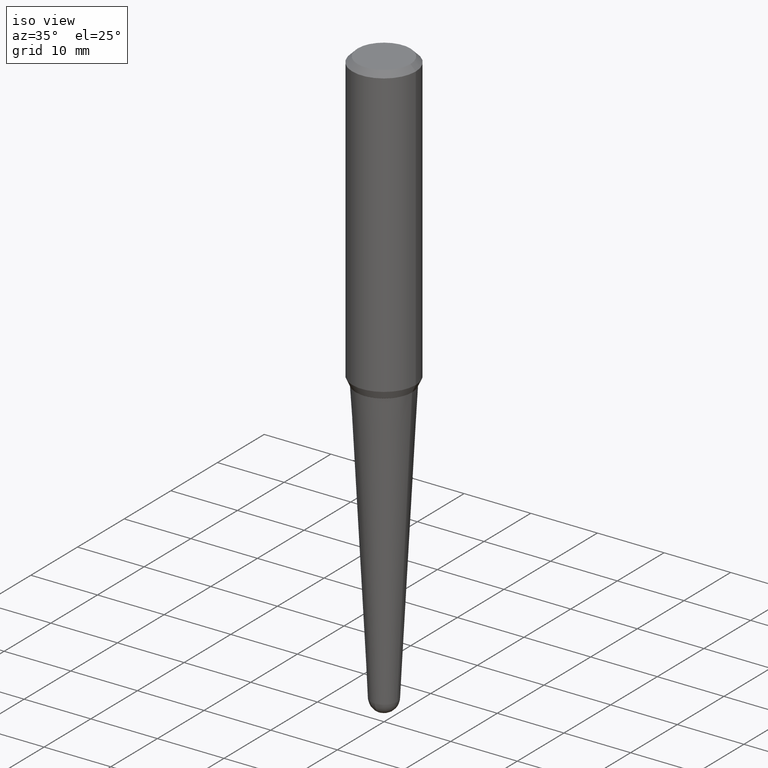
[diagram: clean part render]
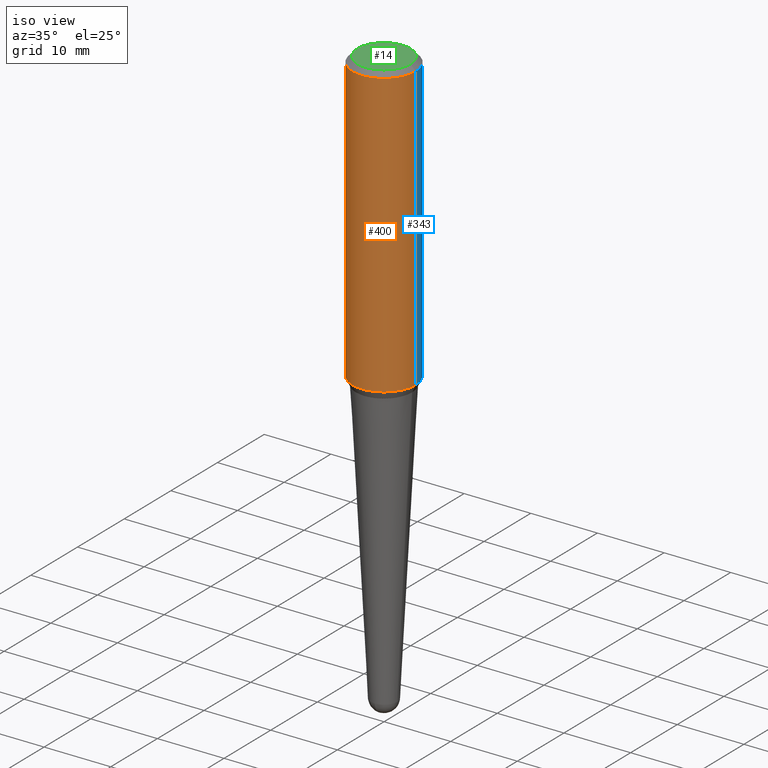
[diagram: same view with three faces highlighted in distinct colors, each labeled with its STEP entity id]
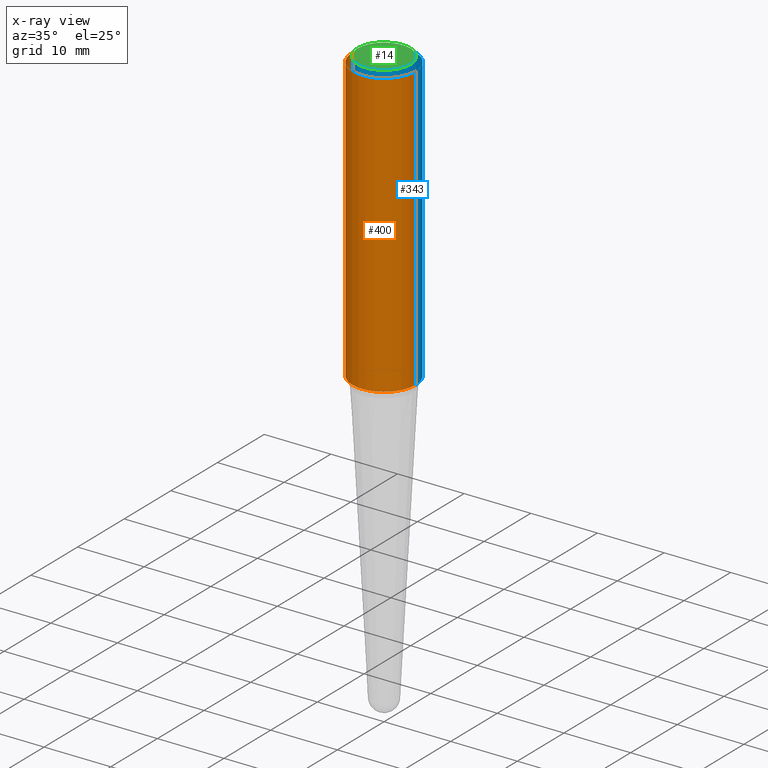
[diagram: x-ray of the same camera — body ghosted, the three highlighted faces saturated]
A machine part, iso view with three faces highlighted in distinct colors.
The next image is the same camera in x-ray (body ghosted, the three faces saturated) — at least one of them is partly hidden behind the body in this view.
Their STEP definitions:

[orange] entity #400 — the highlighted cylindrical surface (partial cylindrical patch) has radius 4.7625 mm, axis along (-0, 0, 1).
#32 = VERTEX_POINT ( 'NONE', #421 ) ;
#53 = CARTESIAN_POINT ( 'NONE',  ( 0.1874999999999999722, -1.418414293905023123E-15, -0.03125000000000003469 ) ) ;
#59 = VERTEX_POINT ( 'NONE', #119 ) ;
#62 = DIRECTION ( 'NONE',  ( -2.445468806185136877E-29, 3.491481338843145188E-15, 1.000000000000000000 ) ) ;
#114 = DIRECTION ( 'NONE',  ( -2.445468806185136597E-29, 3.491481338843145583E-15, 1.000000000000000000 ) ) ;
#119 = CARTESIAN_POINT ( 'NONE',  ( 0.1875000000000002220, -7.262868483743506194E-15, -1.705168209104609645 ) ) ;
#124 = EDGE_LOOP ( 'NONE', ( #162, #325, #396, #194 ) ) ;
#130 = LINE ( 'NONE', #395, #175 ) ;
#144 = AXIS2_PLACEMENT_3D ( 'NONE', #177, #346, #314 ) ;
#150 = VECTOR ( 'NONE', #217, 39.37007874015748143 ) ;
#162 = ORIENTED_EDGE ( 'NONE', *, *, #294, .F. ) ;
#175 = VECTOR ( 'NONE', #62, 39.37007874015748143 ) ;
#177 = CARTESIAN_POINT ( 'NONE',  ( 4.169935664663897396E-29, -5.953562981677331975E-15, -1.705168209104609645 ) ) ;
#178 = LINE ( 'NONE', #331, #150 ) ;
#183 = EDGE_CURVE ( 'NONE', #32, #186, #329, .T. ) ;
#186 = VERTEX_POINT ( 'NONE', #53 ) ;
#190 = EDGE_CURVE ( 'NONE', #238, #59, #366, .T. ) ;
#194 = ORIENTED_EDGE ( 'NONE', *, *, #183, .F. ) ;
#217 = DIRECTION ( 'NONE',  ( -2.445468806185136877E-29, 3.491481338843145188E-15, 1.000000000000000000 ) ) ;
#238 = VERTEX_POINT ( 'NONE', #425 ) ;
#260 = DIRECTION ( 'NONE',  ( 1.000000000000000000, -6.982962677686266711E-15, 0.000000000000000000 ) ) ;
#272 = CYLINDRICAL_SURFACE ( 'NONE', #304, 0.1875000000000001110 ) ;
#289 = AXIS2_PLACEMENT_3D ( 'NONE', #301, #114, #260 ) ;
#294 = EDGE_CURVE ( 'NONE', #238, #32, #130, .T. ) ;
#301 = CARTESIAN_POINT ( 'NONE',  ( 7.642090019328561499E-31, -1.091087918388484350E-16, -0.03125000000000003469 ) ) ;
#304 = AXIS2_PLACEMENT_3D ( 'NONE', #323, #420, #407 ) ;
#314 = DIRECTION ( 'NONE',  ( 1.000000000000000000, -6.982962677686265133E-15, 0.000000000000000000 ) ) ;
#323 = CARTESIAN_POINT ( 'NONE',  ( -1.450455682483482035E-44, 2.070866303999251778E-30, 5.931196827434296760E-16 ) ) ;
#325 = ORIENTED_EDGE ( 'NONE', *, *, #190, .T. ) ;
#329 = CIRCLE ( 'NONE', #289, 0.1874999999999999722 ) ;
#331 = CARTESIAN_POINT ( 'NONE',  ( 0.1875000000000001110, -1.309305502066173628E-15, 5.931196827434387479E-16 ) ) ;
#346 = DIRECTION ( 'NONE',  ( -2.445468806185136597E-29, 3.491481338843145583E-15, 1.000000000000000000 ) ) ;
#366 = CIRCLE ( 'NONE', #144, 0.1875000000000002220 ) ;
#395 = CARTESIAN_POINT ( 'NONE',  ( -0.1875000000000001110, 1.332267629550190807E-15, 5.931196827434205055E-16 ) ) ;
#396 = ORIENTED_EDGE ( 'NONE', *, *, #440, .T. ) ;
#400 = ADVANCED_FACE ( 'NONE', ( #454 ), #272, .T. ) ;
#407 = DIRECTION ( 'NONE',  ( 1.000000000000000000, -6.982962677686266711E-15, 4.852736867747363404E-29 ) ) ;
#420 = DIRECTION ( 'NONE',  ( -2.445468806185136597E-29, 3.491481338843145583E-15, 1.000000000000000000 ) ) ;
#421 = CARTESIAN_POINT ( 'NONE',  ( -0.1874999999999999722, -1.699068257207900914E-15, -0.03125000000000003469 ) ) ;
#425 = CARTESIAN_POINT ( 'NONE',  ( -0.1875000000000002220, -4.621295352127141759E-15, -1.705168209104609645 ) ) ;
#440 = EDGE_CURVE ( 'NONE', #59, #186, #178, .T. ) ;
#454 = FACE_OUTER_BOUND ( 'NONE', #124, .T. ) ;

[blue] entity #343 — the highlighted cylindrical surface (partial cylindrical patch) has radius 4.7625 mm, axis along (-0, 0, 1).
#27 = FACE_OUTER_BOUND ( 'NONE', #324, .T. ) ;
#32 = VERTEX_POINT ( 'NONE', #421 ) ;
#38 = DIRECTION ( 'NONE',  ( -2.445468806185136597E-29, 3.491481338843145583E-15, 1.000000000000000000 ) ) ;
#53 = CARTESIAN_POINT ( 'NONE',  ( 0.1874999999999999722, -1.418414293905023123E-15, -0.03125000000000003469 ) ) ;
#59 = VERTEX_POINT ( 'NONE', #119 ) ;
#62 = DIRECTION ( 'NONE',  ( -2.445468806185136877E-29, 3.491481338843145188E-15, 1.000000000000000000 ) ) ;
#64 = AXIS2_PLACEMENT_3D ( 'NONE', #203, #362, #459 ) ;
#73 = ORIENTED_EDGE ( 'NONE', *, *, #294, .T. ) ;
#74 = CARTESIAN_POINT ( 'NONE',  ( 7.642090019328561499E-31, -1.091087918388484350E-16, -0.03125000000000003469 ) ) ;
#81 = CARTESIAN_POINT ( 'NONE',  ( 4.169935664663897396E-29, -5.953562981677331975E-15, -1.705168209104609645 ) ) ;
#119 = CARTESIAN_POINT ( 'NONE',  ( 0.1875000000000002220, -7.262868483743506194E-15, -1.705168209104609645 ) ) ;
#130 = LINE ( 'NONE', #395, #175 ) ;
#136 = EDGE_CURVE ( 'NONE', #59, #238, #209, .T. ) ;
#150 = VECTOR ( 'NONE', #217, 39.37007874015748143 ) ;
#159 = CYLINDRICAL_SURFACE ( 'NONE', #64, 0.1875000000000001110 ) ;
#175 = VECTOR ( 'NONE', #62, 39.37007874015748143 ) ;
#178 = LINE ( 'NONE', #331, #150 ) ;
#186 = VERTEX_POINT ( 'NONE', #53 ) ;
#189 = AXIS2_PLACEMENT_3D ( 'NONE', #81, #339, #222 ) ;
#203 = CARTESIAN_POINT ( 'NONE',  ( -1.450455682483482035E-44, 2.070866303999251778E-30, 5.931196827434296760E-16 ) ) ;
#209 = CIRCLE ( 'NONE', #189, 0.1875000000000002220 ) ;
#217 = DIRECTION ( 'NONE',  ( -2.445468806185136877E-29, 3.491481338843145188E-15, 1.000000000000000000 ) ) ;
#222 = DIRECTION ( 'NONE',  ( 1.000000000000000000, -6.982962677686265133E-15, 0.000000000000000000 ) ) ;
#230 = ORIENTED_EDGE ( 'NONE', *, *, #136, .T. ) ;
#238 = VERTEX_POINT ( 'NONE', #425 ) ;
#294 = EDGE_CURVE ( 'NONE', #238, #32, #130, .T. ) ;
#324 = EDGE_LOOP ( 'NONE', ( #230, #73, #452, #461 ) ) ;
#331 = CARTESIAN_POINT ( 'NONE',  ( 0.1875000000000001110, -1.309305502066173628E-15, 5.931196827434387479E-16 ) ) ;
#339 = DIRECTION ( 'NONE',  ( -2.445468806185136597E-29, 3.491481338843145583E-15, 1.000000000000000000 ) ) ;
#343 = ADVANCED_FACE ( 'NONE', ( #27 ), #159, .T. ) ;
#362 = DIRECTION ( 'NONE',  ( -2.445468806185136597E-29, 3.491481338843145583E-15, 1.000000000000000000 ) ) ;
#371 = DIRECTION ( 'NONE',  ( 1.000000000000000000, -6.982962677686266711E-15, 0.000000000000000000 ) ) ;
#395 = CARTESIAN_POINT ( 'NONE',  ( -0.1875000000000001110, 1.332267629550190807E-15, 5.931196827434205055E-16 ) ) ;
#421 = CARTESIAN_POINT ( 'NONE',  ( -0.1874999999999999722, -1.699068257207900914E-15, -0.03125000000000003469 ) ) ;
#425 = CARTESIAN_POINT ( 'NONE',  ( -0.1875000000000002220, -4.621295352127141759E-15, -1.705168209104609645 ) ) ;
#427 = AXIS2_PLACEMENT_3D ( 'NONE', #74, #38, #371 ) ;
#438 = CIRCLE ( 'NONE', #427, 0.1874999999999999722 ) ;
#440 = EDGE_CURVE ( 'NONE', #59, #186, #178, .T. ) ;
#448 = EDGE_CURVE ( 'NONE', #186, #32, #438, .T. ) ;
#452 = ORIENTED_EDGE ( 'NONE', *, *, #448, .F. ) ;
#459 = DIRECTION ( 'NONE',  ( 1.000000000000000000, -6.982962677686266711E-15, 4.852736867747363404E-29 ) ) ;
#461 = ORIENTED_EDGE ( 'NONE', *, *, #440, .F. ) ;

[green] entity #14 — the highlighted planar face has unit normal (0, -0, -1).
#14 = ADVANCED_FACE ( 'NONE', ( #192 ), #117, .F. ) ;
#19 = DIRECTION ( 'NONE',  ( 2.438088387897960049E-29, -3.491481338843145188E-15, -1.000000000000000000 ) ) ;
#37 = CIRCLE ( 'NONE', #116, 0.1562500000000004718 ) ;
#90 = AXIS2_PLACEMENT_3D ( 'NONE', #429, #397, #363 ) ;
#97 = EDGE_CURVE ( 'NONE', #196, #394, #399, .T. ) ;
#101 = DIRECTION ( 'NONE',  ( -2.445468806185136597E-29, 3.491481338843145583E-15, 1.000000000000000000 ) ) ;
#116 = AXIS2_PLACEMENT_3D ( 'NONE', #163, #101, #326 ) ;
#117 = PLANE ( 'NONE',  #174 ) ;
#129 = CARTESIAN_POINT ( 'NONE',  ( -0.1562500000000004718, 1.145642314307903527E-15, -6.614158825850442929E-16 ) ) ;
#163 = CARTESIAN_POINT ( 'NONE',  ( 1.617471908777117797E-44, -2.309321211260124338E-30, -6.614158825850365029E-16 ) ) ;
#169 = ORIENTED_EDGE ( 'NONE', *, *, #97, .T. ) ;
#174 = AXIS2_PLACEMENT_3D ( 'NONE', #455, #19, #273 ) ;
#192 = FACE_OUTER_BOUND ( 'NONE', #449, .T. ) ;
#196 = VERTEX_POINT ( 'NONE', #456 ) ;
#273 = DIRECTION ( 'NONE',  ( -1.000000000000000000, 6.982962677686265922E-15, -4.876176775795935793E-29 ) ) ;
#274 = ORIENTED_EDGE ( 'NONE', *, *, #372, .T. ) ;
#326 = DIRECTION ( 'NONE',  ( 1.000000000000000000, -6.982962677686266711E-15, 4.891558762689330142E-29 ) ) ;
#363 = DIRECTION ( 'NONE',  ( 1.000000000000000000, -6.982962677686266711E-15, 4.891558762689330142E-29 ) ) ;
#372 = EDGE_CURVE ( 'NONE', #394, #196, #37, .T. ) ;
#394 = VERTEX_POINT ( 'NONE', #129 ) ;
#397 = DIRECTION ( 'NONE',  ( -2.445468806185136597E-29, 3.491481338843145583E-15, 1.000000000000000000 ) ) ;
#399 = CIRCLE ( 'NONE', #90, 0.1562500000000004718 ) ;
#429 = CARTESIAN_POINT ( 'NONE',  ( 1.617471908777117797E-44, -2.309321211260124338E-30, -6.614158825850365029E-16 ) ) ;
#449 = EDGE_LOOP ( 'NONE', ( #274, #169 ) ) ;
#455 = CARTESIAN_POINT ( 'NONE',  ( 8.087359543885587740E-45, -1.154660605630061818E-30, -3.307079412925182022E-16 ) ) ;
#456 = CARTESIAN_POINT ( 'NONE',  ( 0.1562500000000004718, -1.233702489286409101E-15, -6.614158825850284171E-16 ) ) ;